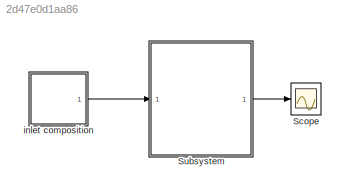
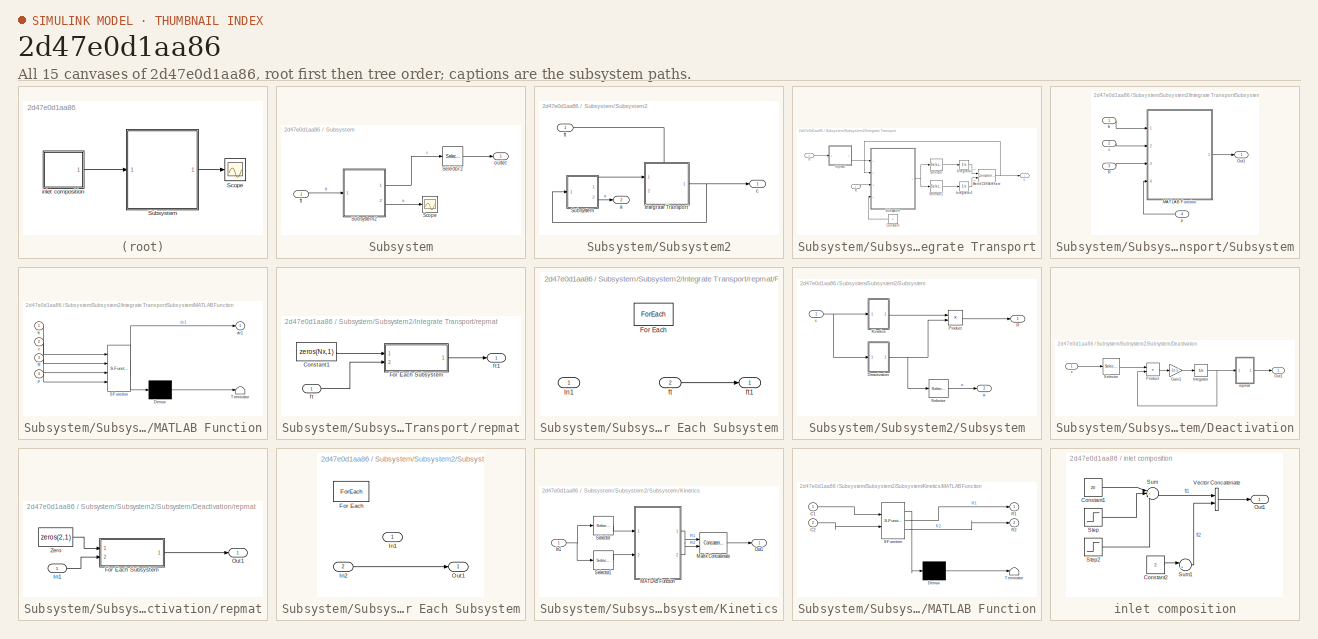
[diagram: thumbnail index - all 15 canvases of the model, root first then tree order]
MODEL slx_2d47e0d1aa86
KIND model
CONFIG AbsTol = auto
CONFIG EnableMultiTasking = off
CONFIG FixedStep = auto
CONFIG MaxStep = auto
CONFIG MinStep = auto
CONFIG RelTol = 1e-3
CONFIG SampleTimeConstraint = Unconstrained
CONFIG SolverName = ode23tb
CONFIG StartTime = 0.0
CONFIG StopTime = 10000
BLOCK [Scope] Scope
  Floating = off
  NumInputPorts = 1
  Ports = [1]
  ScopeSpecificationString = Simulink.scopes.TimeScopeBlockCfg('CurrentConfiguration', extmgr.ConfigurationSet(extmgr.Configuration('Core','General UI',true),extmgr.Configuration('Core','Source UI',true),extmgr.Configuration('Sources','WiredSimulink',true),extmgr.Configuration('Visuals','Time Domain',true,'SerializedDisplays',{struct('MinYLimReal','-2.70674','MaxYLimReal','24.36063','YLabelReal','','MinYLimMag','0.00000','Max...<+1402ch>
BLOCK [SubSystem] Subsystem
  Ports = [1, 1]
  RequestExecContextInheritance = off
BLOCK [Scope] Subsystem/Scope
  Floating = off
  NumInputPorts = 1
  Ports = [1]
  ScopeSpecificationString = Simulink.scopes.TimeScopeBlockCfg('CurrentConfiguration', extmgr.ConfigurationSet(extmgr.Configuration('Core','General UI',true),extmgr.Configuration('Core','Source UI',true),extmgr.Configuration('Sources','WiredSimulink',true,'DataLoggingVariableName','ScopeData1'),extmgr.Configuration('Visuals','Time Domain',true,'SerializedDisplays',{struct('MinYLimReal','0.04903','MaxYLimReal','1.10566','YLabe...<+1576ch>
BLOCK [Selector] Subsystem/Selector2
  IndexOptions = Index vector (dialog),Select all
  Indices = Nx,1
  InputPortWidth = 2
  NumberOfDimensions = 2
  OutputSizes = 1,1
  Ports = [1, 1]
BLOCK [SubSystem] Subsystem/Subsystem2
  Ports = [1, 2]
  RequestExecContextInheritance = off
BLOCK [SubSystem] Subsystem/Subsystem2/Integrate Transport
  PortSchema = {"entries":[{"content":{"sides":[{"content":{"connectorIds":["In1"]},"type":"ConnectorPlacement.EquallySpacedRectSide","uuid":"e3e01424-637b-4a00-a2de-d40794d2ff76"},{"content":{"connectorIds":["Out1"],"side":"RIGHT"},"type":"ConnectorPlacement.EquallySpacedRectSide","uuid":"276261e1-850f-4b68-9985-ea5629fd55a5"},{"content":{"connectorIds":["In2"],"side":"TOP"},"type":"ConnectorPlacement.EquallySp...<+245ch>
  Ports = [2, 1]
  RequestExecContextInheritance = off
BLOCK [Constant] Subsystem/Subsystem2/Integrate Transport/Constant
  LockScale = on
  NameLocation = top
  OutDataTypeStr = Bus: params
  Value = p
BLOCK [Integrator] Subsystem/Subsystem2/Integrate Transport/Integrator
  InitialCondition = c0
  Ports = [1, 1]
BLOCK [Integrator] Subsystem/Subsystem2/Integrate Transport/Integrator1
  InitialCondition = c0
  Ports = [1, 1]
BLOCK [Concatenate] Subsystem/Subsystem2/Integrate Transport/Matrix Concatenate
  ConcatenateDimension = 2
  Mode = Multidimensional array
  Ports = [2, 1]
BLOCK [Inport] Subsystem/Subsystem2/Integrate Transport/R
BLOCK [Selector] Subsystem/Subsystem2/Integrate Transport/Selector
  IndexOptions = Select all,Index vector (dialog)
  Indices = [1 3],1
  InputPortWidth = 3
  NumberOfDimensions = 2
  OutputSizes = 1,1
  Ports = [1, 1]
BLOCK [Selector] Subsystem/Subsystem2/Integrate Transport/Selector1
  IndexOptions = Select all,Index vector (dialog)
  Indices = [1 3],2
  InputPortWidth = 3
  NumberOfDimensions = 2
  OutputSizes = 1,1
  Ports = [1, 1]
BLOCK [SubSystem] Subsystem/Subsystem2/Integrate Transport/Subsystem
  Ports = [4, 1]
  RequestExecContextInheritance = off
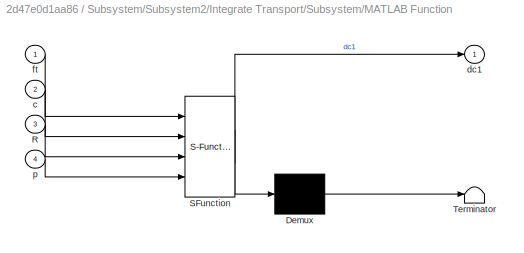
BLOCK [SubSystem] Subsystem/Subsystem2/Integrate Transport/Subsystem/MATLAB Function
  ErrorFcn = Stateflow.Translate.translate
  PermitHierarchicalResolution = ExplicitOnly
  Ports = [4, 1]
  RequestExecContextInheritance = off
  SFBlockType = MATLAB Function
  TreatAsAtomicUnit = on
BLOCK [Demux] Subsystem/Subsystem2/Integrate Transport/Subsystem/MATLAB Function/ Demux 
  Outputs = 1
  Ports = [1, 1]
BLOCK [S-Function] Subsystem/Subsystem2/Integrate Transport/Subsystem/MATLAB Function/ SFunction 
  EnableBusSupport = on
  FunctionName = sf_sfun
  PortCounts = [4 2]
  Ports = [4, 2]
  SFcnIsStateOwnerBlock = off
  SFunctionDeploymentMode = off
  Tag = Stateflow S-Function 2
BLOCK [Terminator] Subsystem/Subsystem2/Integrate Transport/Subsystem/MATLAB Function/ Terminator 
BLOCK [Inport] Subsystem/Subsystem2/Integrate Transport/Subsystem/MATLAB Function/R
  Port = 3
BLOCK [Inport] Subsystem/Subsystem2/Integrate Transport/Subsystem/MATLAB Function/c
  Port = 2
BLOCK [Outport] Subsystem/Subsystem2/Integrate Transport/Subsystem/MATLAB Function/dc1
BLOCK [Inport] Subsystem/Subsystem2/Integrate Transport/Subsystem/MATLAB Function/ft
BLOCK [Inport] Subsystem/Subsystem2/Integrate Transport/Subsystem/MATLAB Function/p
  Port = 4
BLOCK [Outport] Subsystem/Subsystem2/Integrate Transport/Subsystem/Out1
  PortDimensions = [Nx,2]
BLOCK [Inport] Subsystem/Subsystem2/Integrate Transport/Subsystem/R
  Port = 3
  PortDimensions = [Nx,2]
BLOCK [Inport] Subsystem/Subsystem2/Integrate Transport/Subsystem/c
  Port = 2
  PortDimensions = [Nx,2]
BLOCK [Inport] Subsystem/Subsystem2/Integrate Transport/Subsystem/ft
  PortDimensions = [Nx,2]
BLOCK [Inport] Subsystem/Subsystem2/Integrate Transport/Subsystem/p
  Port = 4
BLOCK [Outport] Subsystem/Subsystem2/Integrate Transport/c
BLOCK [Inport] Subsystem/Subsystem2/Integrate Transport/ft
  Port = 2
BLOCK [SubSystem] Subsystem/Subsystem2/Integrate Transport/repmat
  Ports = [1, 1]
  RequestExecContextInheritance = off
BLOCK [Constant] Subsystem/Subsystem2/Integrate Transport/repmat/Constant1
  Value = zeros(Nx,1)
BLOCK [SubSystem] Subsystem/Subsystem2/Integrate Transport/repmat/For Each Subsystem
  Ports = [2, 1]
  RequestExecContextInheritance = off
  TreatAsAtomicUnit = on
BLOCK [ForEach] Subsystem/Subsystem2/Integrate Transport/repmat/For Each Subsystem/For Each
  DisableCoverage = on
  Ports = []
BLOCK [Inport] Subsystem/Subsystem2/Integrate Transport/repmat/For Each Subsystem/In1
  Partition = on
  PartitionDimension = 1
  PartitionOffset = 0
  PartitionWidth = 1
BLOCK [Inport] Subsystem/Subsystem2/Integrate Transport/repmat/For Each Subsystem/ft
  Port = 2
BLOCK [Outport] Subsystem/Subsystem2/Integrate Transport/repmat/For Each Subsystem/ft1
  ConcatenationDimension = 1
BLOCK [Inport] Subsystem/Subsystem2/Integrate Transport/repmat/ft
BLOCK [Outport] Subsystem/Subsystem2/Integrate Transport/repmat/ft1
BLOCK [SubSystem] Subsystem/Subsystem2/Subsystem
  Ports = [1, 2]
  RequestExecContextInheritance = off
BLOCK [SubSystem] Subsystem/Subsystem2/Subsystem/Deactivation
  Ports = [1, 1]
  RequestExecContextInheritance = off
BLOCK [Gain] Subsystem/Subsystem2/Subsystem/Deactivation/Gain1
  Gain = -1e-5
BLOCK [Integrator] Subsystem/Subsystem2/Subsystem/Deactivation/Integrator
  InitialCondition = ones(Nx,1)
  Ports = [1, 1]
BLOCK [Outport] Subsystem/Subsystem2/Subsystem/Deactivation/Out1
BLOCK [Product] Subsystem/Subsystem2/Subsystem/Deactivation/Product
  Ports = [2, 1]
BLOCK [Selector] Subsystem/Subsystem2/Subsystem/Deactivation/Selector
  IndexOptions = Select all,Index vector (dialog)
  Indices = 1,1
  InputPortWidth = 2
  NumberOfDimensions = 2
  OutputSizes = 1,1
  Ports = [1, 1]
BLOCK [Inport] Subsystem/Subsystem2/Subsystem/Deactivation/c
BLOCK [SubSystem] Subsystem/Subsystem2/Subsystem/Deactivation/repmat
  Ports = [1, 1]
  RequestExecContextInheritance = off
BLOCK [SubSystem] Subsystem/Subsystem2/Subsystem/Deactivation/repmat/For Each Subsystem
  Ports = [2, 1]
  RequestExecContextInheritance = off
  TreatAsAtomicUnit = on
BLOCK [ForEach] Subsystem/Subsystem2/Subsystem/Deactivation/repmat/For Each Subsystem/For Each
  DisableCoverage = on
  Ports = []
BLOCK [Inport] Subsystem/Subsystem2/Subsystem/Deactivation/repmat/For Each Subsystem/In1
  Partition = on
  PartitionDimension = 1
  PartitionOffset = 0
  PartitionWidth = 1
BLOCK [Inport] Subsystem/Subsystem2/Subsystem/Deactivation/repmat/For Each Subsystem/In2
  Port = 2
BLOCK [Outport] Subsystem/Subsystem2/Subsystem/Deactivation/repmat/For Each Subsystem/Out1
  ConcatenationDimension = 2
BLOCK [Inport] Subsystem/Subsystem2/Subsystem/Deactivation/repmat/In1
BLOCK [Outport] Subsystem/Subsystem2/Subsystem/Deactivation/repmat/Out1
BLOCK [Constant] Subsystem/Subsystem2/Subsystem/Deactivation/repmat/Zero
  OutDataTypeStr = Inherit: Inherit via back propagation
  Value = zeros(2,1)
BLOCK [SubSystem] Subsystem/Subsystem2/Subsystem/Kinetics
  Ports = [1, 1]
  RequestExecContextInheritance = off
BLOCK [Inport] Subsystem/Subsystem2/Subsystem/Kinetics/In1
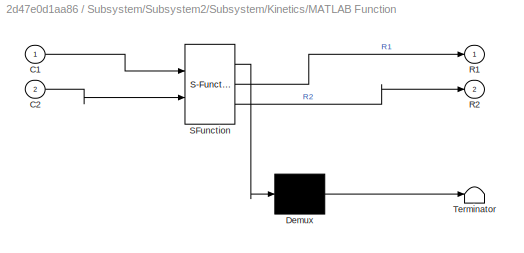
BLOCK [SubSystem] Subsystem/Subsystem2/Subsystem/Kinetics/MATLAB Function
  ErrorFcn = Stateflow.Translate.translate
  PermitHierarchicalResolution = ExplicitOnly
  Ports = [2, 2]
  RequestExecContextInheritance = off
  SFBlockType = MATLAB Function
  TreatAsAtomicUnit = on
BLOCK [Demux] Subsystem/Subsystem2/Subsystem/Kinetics/MATLAB Function/ Demux 
  Outputs = 1
  Ports = [1, 1]
BLOCK [S-Function] Subsystem/Subsystem2/Subsystem/Kinetics/MATLAB Function/ SFunction 
  EnableBusSupport = on
  FunctionName = sf_sfun
  PortCounts = [2 3]
  Ports = [2, 3]
  SFcnIsStateOwnerBlock = off
  SFunctionDeploymentMode = off
  Tag = Stateflow S-Function 1
BLOCK [Terminator] Subsystem/Subsystem2/Subsystem/Kinetics/MATLAB Function/ Terminator 
BLOCK [Inport] Subsystem/Subsystem2/Subsystem/Kinetics/MATLAB Function/C1
BLOCK [Inport] Subsystem/Subsystem2/Subsystem/Kinetics/MATLAB Function/C2
  Port = 2
BLOCK [Outport] Subsystem/Subsystem2/Subsystem/Kinetics/MATLAB Function/R1
BLOCK [Outport] Subsystem/Subsystem2/Subsystem/Kinetics/MATLAB Function/R2
  Port = 2
BLOCK [Concatenate] Subsystem/Subsystem2/Subsystem/Kinetics/Matrix Concatenate
  ConcatenateDimension = 2
  Mode = Multidimensional array
  Ports = [2, 1]
BLOCK [Outport] Subsystem/Subsystem2/Subsystem/Kinetics/Out1
BLOCK [Selector] Subsystem/Subsystem2/Subsystem/Kinetics/Selector
  IndexOptions = Select all,Index vector (dialog)
  Indices = 1,1
  InputPortWidth = 2
  NumberOfDimensions = 2
  OutputSizes = 1,1
  Ports = [1, 1]
BLOCK [Selector] Subsystem/Subsystem2/Subsystem/Kinetics/Selector1
  IndexOptions = Select all,Index vector (dialog)
  Indices = 2,2
  InputPortWidth = 2
  NumberOfDimensions = 2
  OutputSizes = 1,1
  Ports = [1, 1]
BLOCK [Product] Subsystem/Subsystem2/Subsystem/Product
  OutDataTypeStr = Inherit: Same as first input
  Ports = [2, 1]
BLOCK [Outport] Subsystem/Subsystem2/Subsystem/R
BLOCK [Selector] Subsystem/Subsystem2/Subsystem/Selector
  IndexOptions = Select all,Index vector (dialog)
  Indices = 1,1
  InputPortWidth = 3
  NumberOfDimensions = 2
  OutputSizes = 1,1
  Ports = [1, 1]
BLOCK [Outport] Subsystem/Subsystem2/Subsystem/a
  Port = 2
BLOCK [Inport] Subsystem/Subsystem2/Subsystem/c
BLOCK [Outport] Subsystem/Subsystem2/a
  Port = 2
BLOCK [Outport] Subsystem/Subsystem2/c
BLOCK [Inport] Subsystem/Subsystem2/ft
BLOCK [Inport] Subsystem/ft
BLOCK [Outport] Subsystem/outlet
BLOCK [SubSystem] inlet composition
  Ports = [0, 1]
  RequestExecContextInheritance = off
BLOCK [Constant] inlet composition/Constant1
  Value = 20
BLOCK [Constant] inlet composition/Constant2
  Value = 2
BLOCK [Outport] inlet composition/Out1
BLOCK [Step] inlet composition/Step
  After = 20
  SampleTime = 0
  Time = 6000
BLOCK [Step] inlet composition/Step2
  After = 10
  SampleTime = 0
  Time = 3000
BLOCK [Sum] inlet composition/Sum
  Inputs = |+-+
  Ports = [3, 1]
BLOCK [Sum] inlet composition/Sum1
  Inputs = |++
  Ports = [2, 1]
BLOCK [Concatenate] inlet composition/Vector Concatenate
  ConcatenateDimension = 2
  Mode = Multidimensional array
  Ports = [2, 1]
LINE Subsystem/Selector2:1 -> Subsystem/outlet:1
LINE Subsystem/Subsystem2/Integrate Transport/Constant:1 -> Subsystem/Subsystem2/Integrate Transport/Subsystem:4
LINE Subsystem/Subsystem2/Integrate Transport/Integrator1:1 -> Subsystem/Subsystem2/Integrate Transport/Matrix Concatenate:2
LINE Subsystem/Subsystem2/Integrate Transport/Integrator:1 -> Subsystem/Subsystem2/Integrate Transport/Matrix Concatenate:1
NET Subsystem/Subsystem2/Integrate Transport/Matrix Concatenate:1 -> Subsystem/Subsystem2/Integrate Transport/Subsystem:2, Subsystem/Subsystem2/Integrate Transport/c:1
LINE Subsystem/Subsystem2/Integrate Transport/R:1 -> Subsystem/Subsystem2/Integrate Transport/Subsystem:3
LINE Subsystem/Subsystem2/Integrate Transport/Selector1:1 -> Subsystem/Subsystem2/Integrate Transport/Integrator1:1
LINE Subsystem/Subsystem2/Integrate Transport/Selector:1 -> Subsystem/Subsystem2/Integrate Transport/Integrator:1
LINE Subsystem/Subsystem2/Integrate Transport/Subsystem/MATLAB Function:1 -> Subsystem/Subsystem2/Integrate Transport/Subsystem/Out1:1
LINE Subsystem/Subsystem2/Integrate Transport/Subsystem/R:1 -> Subsystem/Subsystem2/Integrate Transport/Subsystem/MATLAB Function:3
LINE Subsystem/Subsystem2/Integrate Transport/Subsystem/c:1 -> Subsystem/Subsystem2/Integrate Transport/Subsystem/MATLAB Function:2
LINE Subsystem/Subsystem2/Integrate Transport/Subsystem/ft:1 -> Subsystem/Subsystem2/Integrate Transport/Subsystem/MATLAB Function:1
LINE Subsystem/Subsystem2/Integrate Transport/Subsystem/p:1 -> Subsystem/Subsystem2/Integrate Transport/Subsystem/MATLAB Function:4
NET Subsystem/Subsystem2/Integrate Transport/Subsystem:1 -> Subsystem/Subsystem2/Integrate Transport/Selector1:1, Subsystem/Subsystem2/Integrate Transport/Selector:1
LINE Subsystem/Subsystem2/Integrate Transport/ft:1 -> Subsystem/Subsystem2/Integrate Transport/repmat:1
LINE Subsystem/Subsystem2/Integrate Transport/repmat/Constant1:1 -> Subsystem/Subsystem2/Integrate Transport/repmat/For Each Subsystem:1
LINE Subsystem/Subsystem2/Integrate Transport/repmat/For Each Subsystem/ft:1 -> Subsystem/Subsystem2/Integrate Transport/repmat/For Each Subsystem/ft1:1
LINE Subsystem/Subsystem2/Integrate Transport/repmat/For Each Subsystem:1 -> Subsystem/Subsystem2/Integrate Transport/repmat/ft1:1
LINE Subsystem/Subsystem2/Integrate Transport/repmat/ft:1 -> Subsystem/Subsystem2/Integrate Transport/repmat/For Each Subsystem:2
LINE Subsystem/Subsystem2/Integrate Transport/repmat:1 -> Subsystem/Subsystem2/Integrate Transport/Subsystem:1
NET Subsystem/Subsystem2/Integrate Transport:1 -> Subsystem/Subsystem2/Subsystem:1, Subsystem/Subsystem2/c:1
LINE Subsystem/Subsystem2/Subsystem/Deactivation/Gain1:1 -> Subsystem/Subsystem2/Subsystem/Deactivation/Integrator:1
NET Subsystem/Subsystem2/Subsystem/Deactivation/Integrator:1 -> Subsystem/Subsystem2/Subsystem/Deactivation/Product:2, Subsystem/Subsystem2/Subsystem/Deactivation/repmat:1
LINE Subsystem/Subsystem2/Subsystem/Deactivation/Product:1 -> Subsystem/Subsystem2/Subsystem/Deactivation/Gain1:1
LINE Subsystem/Subsystem2/Subsystem/Deactivation/Selector:1 -> Subsystem/Subsystem2/Subsystem/Deactivation/Product:1
LINE Subsystem/Subsystem2/Subsystem/Deactivation/c:1 -> Subsystem/Subsystem2/Subsystem/Deactivation/Selector:1
LINE Subsystem/Subsystem2/Subsystem/Deactivation/repmat/For Each Subsystem/In2:1 -> Subsystem/Subsystem2/Subsystem/Deactivation/repmat/For Each Subsystem/Out1:1
LINE Subsystem/Subsystem2/Subsystem/Deactivation/repmat/For Each Subsystem:1 -> Subsystem/Subsystem2/Subsystem/Deactivation/repmat/Out1:1
LINE Subsystem/Subsystem2/Subsystem/Deactivation/repmat/In1:1 -> Subsystem/Subsystem2/Subsystem/Deactivation/repmat/For Each Subsystem:2
LINE Subsystem/Subsystem2/Subsystem/Deactivation/repmat/Zero:1 -> Subsystem/Subsystem2/Subsystem/Deactivation/repmat/For Each Subsystem:1
LINE Subsystem/Subsystem2/Subsystem/Deactivation/repmat:1 -> Subsystem/Subsystem2/Subsystem/Deactivation/Out1:1
NET Subsystem/Subsystem2/Subsystem/Deactivation:1 -> Subsystem/Subsystem2/Subsystem/Product:2, Subsystem/Subsystem2/Subsystem/Selector:1
NET Subsystem/Subsystem2/Subsystem/Kinetics/In1:1 -> Subsystem/Subsystem2/Subsystem/Kinetics/Selector1:1, Subsystem/Subsystem2/Subsystem/Kinetics/Selector:1
LINE Subsystem/Subsystem2/Subsystem/Kinetics/MATLAB Function:1 -> Subsystem/Subsystem2/Subsystem/Kinetics/Matrix Concatenate:1
LINE Subsystem/Subsystem2/Subsystem/Kinetics/MATLAB Function:2 -> Subsystem/Subsystem2/Subsystem/Kinetics/Matrix Concatenate:2
LINE Subsystem/Subsystem2/Subsystem/Kinetics/Matrix Concatenate:1 -> Subsystem/Subsystem2/Subsystem/Kinetics/Out1:1
LINE Subsystem/Subsystem2/Subsystem/Kinetics/Selector1:1 -> Subsystem/Subsystem2/Subsystem/Kinetics/MATLAB Function:2
LINE Subsystem/Subsystem2/Subsystem/Kinetics/Selector:1 -> Subsystem/Subsystem2/Subsystem/Kinetics/MATLAB Function:1
LINE Subsystem/Subsystem2/Subsystem/Kinetics:1 -> Subsystem/Subsystem2/Subsystem/Product:1
LINE Subsystem/Subsystem2/Subsystem/Product:1 -> Subsystem/Subsystem2/Subsystem/R:1
LINE Subsystem/Subsystem2/Subsystem/Selector:1 -> Subsystem/Subsystem2/Subsystem/a:1
NET Subsystem/Subsystem2/Subsystem/c:1 -> Subsystem/Subsystem2/Subsystem/Deactivation:1, Subsystem/Subsystem2/Subsystem/Kinetics:1
LINE Subsystem/Subsystem2/Subsystem:1 -> Subsystem/Subsystem2/Integrate Transport:1
LINE Subsystem/Subsystem2/Subsystem:2 -> Subsystem/Subsystem2/a:1
LINE Subsystem/Subsystem2/ft:1 -> Subsystem/Subsystem2/Integrate Transport:2
LINE Subsystem/Subsystem2:1 -> Subsystem/Selector2:1
LINE Subsystem/Subsystem2:2 -> Subsystem/Scope:1
LINE Subsystem/ft:1 -> Subsystem/Subsystem2:1
LINE Subsystem:1 -> Scope:1
LINE inlet composition/Constant1:1 -> inlet composition/Sum:1
LINE inlet composition/Constant2:1 -> inlet composition/Sum1:1
LINE inlet composition/Step2:1 -> inlet composition/Sum:3
LINE inlet composition/Step:1 -> inlet composition/Sum:2
LINE inlet composition/Sum1:1 -> inlet composition/Vector Concatenate:2
LINE inlet composition/Sum:1 -> inlet composition/Vector Concatenate:1
LINE inlet composition/Vector Concatenate:1 -> inlet composition/Out1:1
LINE inlet composition:1 -> Subsystem:1
note: NET lines group one-source signal fan-out (src -> all destinations, sorted); 1:1 wires keep LINE
CHART Subsystem/Subsystem2/Subsystem/Kinetics/MATLAB Function states=1 transitions=1
  STATE_LABEL 'eML_blk_kernel()'
  STATE_LABEL 'SCRIPT:\nfunction [R1,R2] = fcn(C1,C2)\n% \nR1 = -C1;\nR2 =  C1;\n%\n% alpha = 1;\n% C1_eq = 10;\n% C2_eq = 10;\n% R1 = alpha*(C1_eq  - C1);\n% R2 = alpha*(C2_eq  - C2);'
CHART Subsystem/Subsystem2/Integrate Transport/Subsystem/MATLAB Function states=1 transitions=1
  STATE_LABEL 'eML_blk_kernel()'
  STATE_LABEL 'SCRIPT:\nfunction dc1 = fcn(ft,c,R,p)\n\ndx = p.dx;\nDc = p.Dc;\nbc = p.bc;\n\ndc1 = -(1/dx)*(Dc*c + ft.*bc) + R;\n'
CHART  states=0 transitions=0
CHART  states=0 transitions=0
